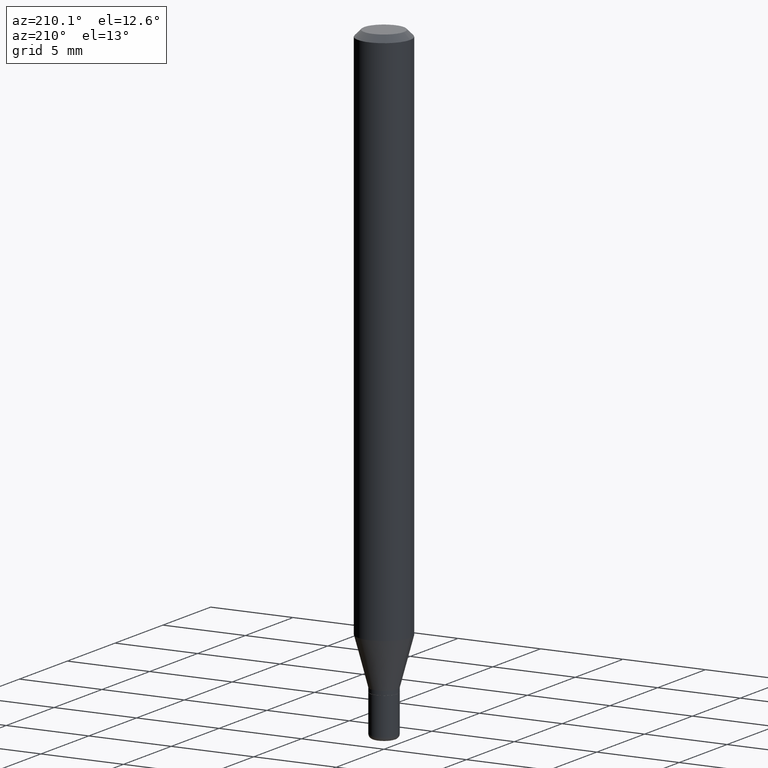
[diagram: clean part render]
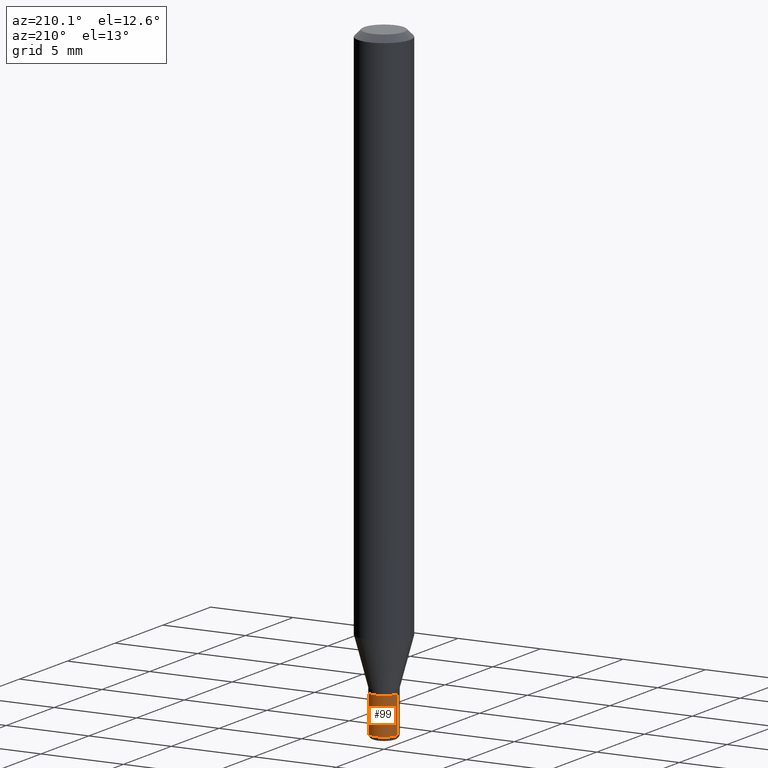
[diagram: same view with one face highlighted and labeled with its STEP entity id]
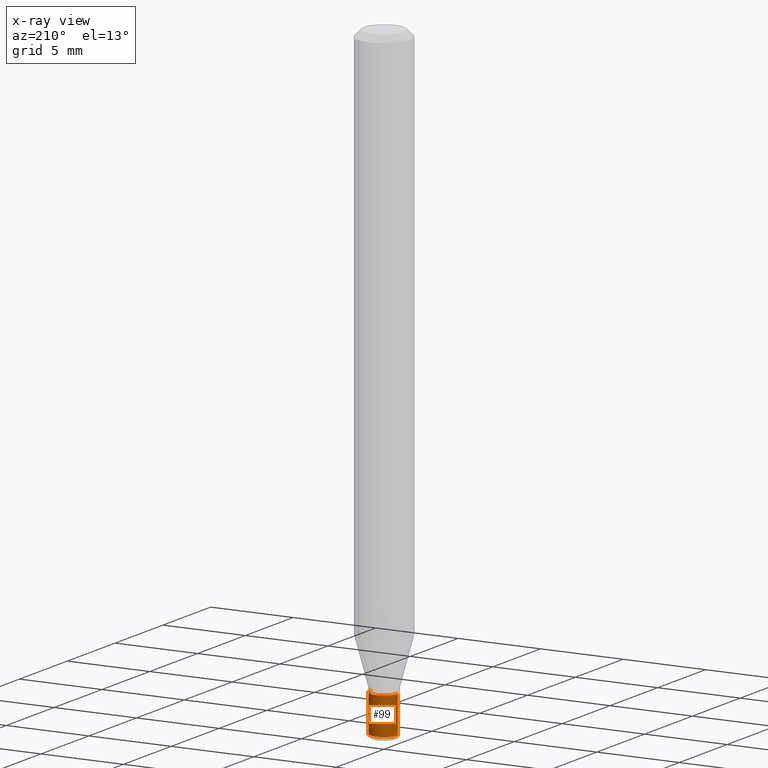
[diagram: x-ray of the same camera — body ghosted, the highlighted face saturated]
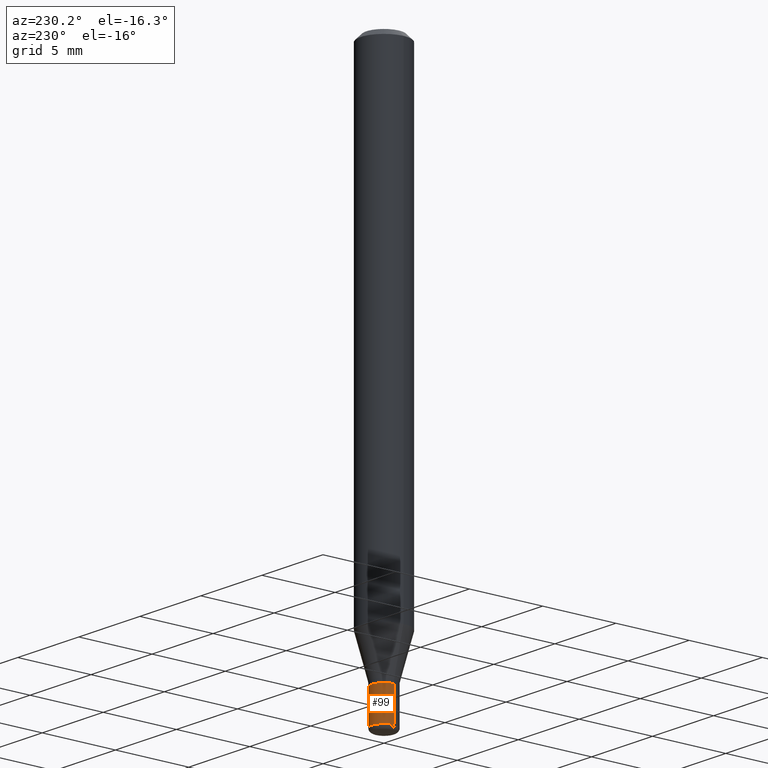
[diagram: same view with one face highlighted and labeled with its STEP entity id]
A machine part, auxiliary view. The second image highlights one B-rep face of the part: STEP entity #99.
The next image is the same camera in x-ray: the body ghosted, the highlighted face saturated — about 0% of this face is hidden behind the body in this view.
A second angle (auxiliary view) of the same face is appended — the face is thin or edge-on in the first view.
In plain terms, the highlighted cylindrical surface (edge-blend (fillet) strip) has radius 0.8255 mm, axis along (-0, 0, 1).
Its self-contained STEP definition (entity closure, byte-faithful):
#10 = CARTESIAN_POINT ( 'NONE',  ( 0.03249999999999996642, -2.269462870248034512E-16, 1.584757452133677591E-30 ) ) ;
#12 = CARTESIAN_POINT ( 'NONE',  ( 3.643748521215853910E-29, -5.202307194876288105E-15, -1.490000000000000213 ) ) ;
#13 = FACE_OUTER_BOUND ( 'NONE', #505, .T. ) ;
#17 = DIRECTION ( 'NONE',  ( 1.000000000000000000, -6.982962677686267499E-15, 4.876176775795936353E-29 ) ) ;
#71 = CARTESIAN_POINT ( 'NONE',  ( 0.03250000000000000111, -5.122003124082894208E-15, -1.402000000000000135 ) ) ;
#85 = ORIENTED_EDGE ( 'NONE', *, *, #517, .F. ) ;
#90 = EDGE_CURVE ( 'NONE', #447, #297, #219, .T. ) ;
#99 = ADVANCED_FACE ( 'NONE', ( #13 ), #328, .T. ) ;
#112 = DIRECTION ( 'NONE',  ( 1.000000000000000000, -6.982962677686258033E-15, 0.000000000000000000 ) ) ;
#115 = DIRECTION ( 'NONE',  ( -2.445468806185136877E-29, 3.491481338843145188E-15, 1.000000000000000000 ) ) ;
#128 = CARTESIAN_POINT ( 'NONE',  ( 0.03249999999999994560, -5.429253481901091458E-15, -1.490000000000000213 ) ) ;
#129 = AXIS2_PLACEMENT_3D ( 'NONE', #411, #258, #17 ) ;
#154 = AXIS2_PLACEMENT_3D ( 'NONE', #338, #470, #112 ) ;
#155 = VECTOR ( 'NONE', #115, 39.37007874015748143 ) ;
#166 = ORIENTED_EDGE ( 'NONE', *, *, #187, .T. ) ;
#171 = CARTESIAN_POINT ( 'NONE',  ( -0.03250000000000000111, -4.817755626845157109E-15, -1.402000000000000135 ) ) ;
#179 = DIRECTION ( 'NONE',  ( -2.445468806185136597E-29, 3.491481338843145583E-15, 1.000000000000000000 ) ) ;
#187 = EDGE_CURVE ( 'NONE', #319, #447, #192, .T. ) ;
#192 = CIRCLE ( 'NONE', #323, 0.03249999999999994560 ) ;
#219 = LINE ( 'NONE', #377, #436 ) ;
#222 = EDGE_CURVE ( 'NONE', #369, #297, #280, .T. ) ;
#251 = DIRECTION ( 'NONE',  ( -2.445468806185136877E-29, 3.491481338843145188E-15, 1.000000000000000000 ) ) ;
#258 = DIRECTION ( 'NONE',  ( -2.445468806185136597E-29, 3.491481338843145583E-15, 1.000000000000000000 ) ) ;
#280 = CIRCLE ( 'NONE', #154, 0.03250000000000000111 ) ;
#297 = VERTEX_POINT ( 'NONE', #171 ) ;
#312 = CARTESIAN_POINT ( 'NONE',  ( -0.03249999999999994560, -4.817755626845157109E-15, -1.490000000000000213 ) ) ;
#319 = VERTEX_POINT ( 'NONE', #128 ) ;
#323 = AXIS2_PLACEMENT_3D ( 'NONE', #12, #179, #331 ) ;
#328 = CYLINDRICAL_SURFACE ( 'NONE', #129, 0.03249999999999996642 ) ;
#331 = DIRECTION ( 'NONE',  ( 1.000000000000000000, -6.982962677686269866E-15, 0.000000000000000000 ) ) ;
#338 = CARTESIAN_POINT ( 'NONE',  ( 3.428547266271562329E-29, -4.895056837058090855E-15, -1.402000000000000135 ) ) ;
#369 = VERTEX_POINT ( 'NONE', #71 ) ;
#371 = LINE ( 'NONE', #10, #155 ) ;
#377 = CARTESIAN_POINT ( 'NONE',  ( -0.03249999999999996642, 2.309263891220323218E-16, -1.598653904332843006E-30 ) ) ;
#378 = ORIENTED_EDGE ( 'NONE', *, *, #90, .T. ) ;
#408 = ORIENTED_EDGE ( 'NONE', *, *, #222, .F. ) ;
#411 = CARTESIAN_POINT ( 'NONE',  ( 0.000000000000000000, 0.000000000000000000, 0.000000000000000000 ) ) ;
#436 = VECTOR ( 'NONE', #251, 39.37007874015748143 ) ;
#447 = VERTEX_POINT ( 'NONE', #312 ) ;
#470 = DIRECTION ( 'NONE',  ( -2.445468806185136597E-29, 3.491481338843145583E-15, 1.000000000000000000 ) ) ;
#505 = EDGE_LOOP ( 'NONE', ( #166, #378, #408, #85 ) ) ;
#517 = EDGE_CURVE ( 'NONE', #319, #369, #371, .T. ) ;